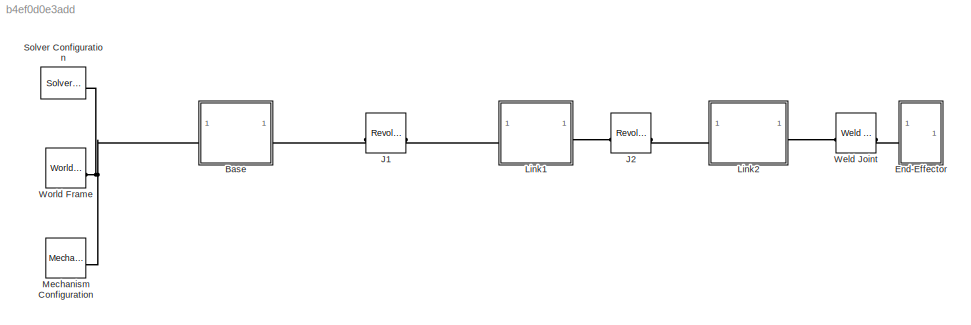
MODEL slx_b4ef0d0e3add
KIND model
CONFIG AbsTol = auto
CONFIG EnableMultiTasking = off
CONFIG FixedStep = auto
CONFIG MaxStep = auto
CONFIG MinStep = auto
CONFIG RelTol = 1e-3
CONFIG SampleTimeConstraint = Unconstrained
CONFIG SolverName = VariableStepAuto
CONFIG StartTime = 0.0
CONFIG StopTime = 10.0
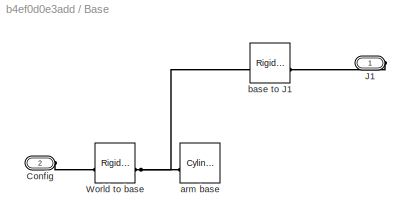
BLOCK [SubSystem] Base
BLOCK [PMIOPort] Base/Config
  Port = 2
  Side = Left
BLOCK [PMIOPort] Base/J1
  Side = Right
BLOCK [Reference] Base/World to base  REF=sm_lib/Frames and
Transforms/Rigid
Transform
  SourceBlock = sm_lib/Frames and\nTransforms/Rigid\nTransform
  SourceType = Rigid\nTransform
BLOCK [Reference] Base/arm base  REF=sm_lib/Body Elements/Cylindrical Solid
  SourceBlock = sm_lib/Body Elements/Cylindrical Solid
  SourceType = Cylindrical Solid
BLOCK [Reference] Base/base to J1  REF=sm_lib/Frames and
Transforms/Rigid
Transform
  SourceBlock = sm_lib/Frames and\nTransforms/Rigid\nTransform
  SourceType = Rigid\nTransform
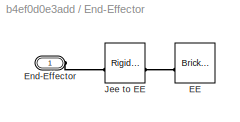
BLOCK [SubSystem] End-Effector
BLOCK [Reference] End-Effector/EE  REF=sm_lib/Body Elements/Brick Solid
  SourceBlock = sm_lib/Body Elements/Brick Solid
  SourceType = Brick Solid
BLOCK [PMIOPort] End-Effector/End-Effector
  Side = Left
BLOCK [Reference] End-Effector/Jee to EE  REF=sm_lib/Frames and
Transforms/Rigid
Transform
  SourceBlock = sm_lib/Frames and\nTransforms/Rigid\nTransform
  SourceType = Rigid\nTransform
BLOCK [Reference] J1  REF=sm_lib/Joints/Revolute Joint
  SourceBlock = sm_lib/Joints/Revolute Joint
  SourceType = Revolute Joint
BLOCK [Reference] J2  REF=sm_lib/Joints/Revolute Joint
  SourceBlock = sm_lib/Joints/Revolute Joint
  SourceType = Revolute Joint
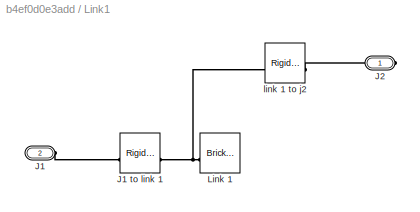
BLOCK [SubSystem] Link1
BLOCK [PMIOPort] Link1/J1
  Port = 2
  Side = Left
BLOCK [Reference] Link1/J1 to link 1   REF=sm_lib/Frames and
Transforms/Rigid
Transform
  SourceBlock = sm_lib/Frames and\nTransforms/Rigid\nTransform
  SourceType = Rigid\nTransform
BLOCK [PMIOPort] Link1/J2
  Side = Right
BLOCK [Reference] Link1/Link 1  REF=sm_lib/Body Elements/Brick Solid
  SourceBlock = sm_lib/Body Elements/Brick Solid
  SourceType = Brick Solid
BLOCK [Reference] Link1/link 1 to j2  REF=sm_lib/Frames and
Transforms/Rigid
Transform
  SourceBlock = sm_lib/Frames and\nTransforms/Rigid\nTransform
  SourceType = Rigid\nTransform
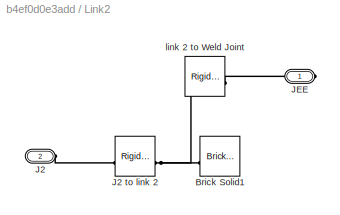
BLOCK [SubSystem] Link2
BLOCK [Reference] Link2/Brick Solid1  REF=sm_lib/Body Elements/Brick Solid
  SourceBlock = sm_lib/Body Elements/Brick Solid
  SourceType = Brick Solid
BLOCK [PMIOPort] Link2/J2
  Port = 2
  Side = Left
BLOCK [Reference] Link2/J2 to link 2  REF=sm_lib/Frames and
Transforms/Rigid
Transform
  SourceBlock = sm_lib/Frames and\nTransforms/Rigid\nTransform
  SourceType = Rigid\nTransform
BLOCK [PMIOPort] Link2/JEE
  Side = Right
BLOCK [Reference] Link2/link 2 to Weld Joint  REF=sm_lib/Frames and
Transforms/Rigid
Transform
  SourceBlock = sm_lib/Frames and\nTransforms/Rigid\nTransform
  SourceType = Rigid\nTransform
BLOCK [Reference] Mechanism Configuration  REF=sm_lib/Utilities/Mechanism
Configuration
  SourceBlock = sm_lib/Utilities/Mechanism\nConfiguration
  SourceType = Mechanism\nConfiguration
BLOCK [Reference] Solver Configuration  REF=nesl_utility/Solver
Configuration
  SourceBlock = nesl_utility/Solver\nConfiguration
  SourceType = Solver\nConfiguration
BLOCK [Reference] Weld Joint  REF=sm_lib/Joints/Weld Joint
  SourceBlock = sm_lib/Joints/Weld Joint
  SourceType = Weld Joint
BLOCK [Reference] World Frame  REF=sm_lib/Frames and
Transforms/World Frame
  SourceBlock = sm_lib/Frames and\nTransforms/World Frame
  SourceType = World Frame
PLINE Base/Config:RConn1 -- Base/World to base:LConn1
PLINE Base/J1:RConn1 -- Base/base to J1:RConn1
PNET net1: Base/World to base:RConn1 -- Base/arm base:RConn1 -- Base/base to J1:LConn1
PNET net2: Base:LConn1 -- Mechanism Configuration:RConn1 -- Solver Configuration:RConn1 -- World Frame:RConn1
PLINE Base:RConn1 -- J1:LConn1
PLINE End-Effector/EE:RConn1 -- End-Effector/Jee to EE:RConn1
PLINE End-Effector/End-Effector:RConn1 -- End-Effector/Jee to EE:LConn1
PLINE End-Effector:LConn1 -- Weld Joint:RConn1
PLINE J1:RConn1 -- Link1:LConn1
PLINE J2:LConn1 -- Link1:RConn1
PLINE J2:RConn1 -- Link2:LConn1
PLINE Link1/J1 to link 1 :LConn1 -- Link1/J1:RConn1
PNET net3: Link1/J1 to link 1 :RConn1 -- Link1/Link 1:RConn1 -- Link1/link 1 to j2:LConn1
PLINE Link1/J2:RConn1 -- Link1/link 1 to j2:RConn1
PNET net4: Link2/Brick Solid1:RConn1 -- Link2/J2 to link 2:RConn1 -- Link2/link 2 to Weld Joint:LConn1
PLINE Link2/J2 to link 2:LConn1 -- Link2/J2:RConn1
PLINE Link2/JEE:RConn1 -- Link2/link 2 to Weld Joint:RConn1
PLINE Link2:RConn1 -- Weld Joint:LConn1
note: PNET lines group multi-terminal physical nets as a canonical sorted terminal list (undirected conserving connections); 2-terminal nets keep the pairwise PLINE form
